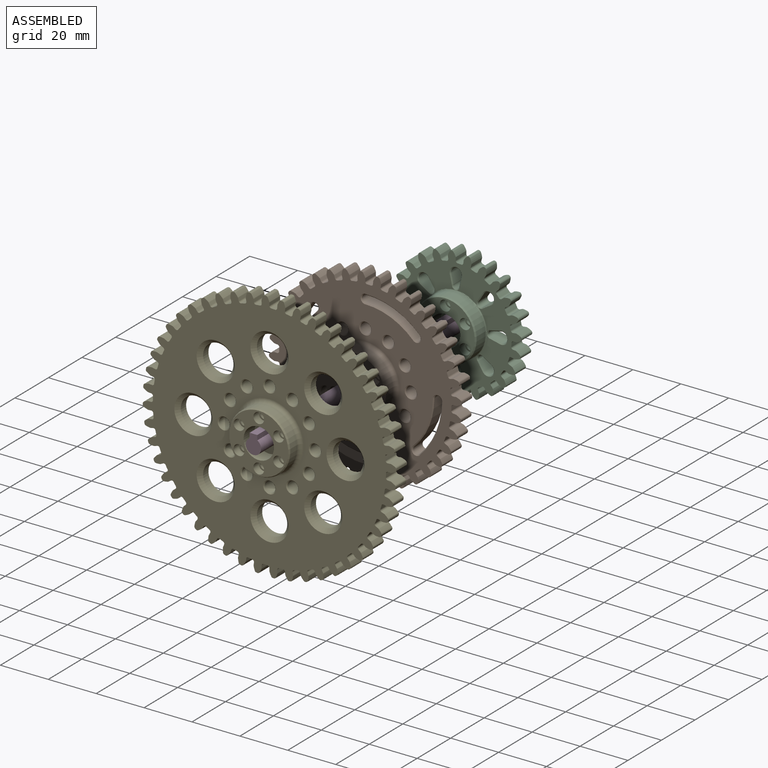
[diagram: assembled view]
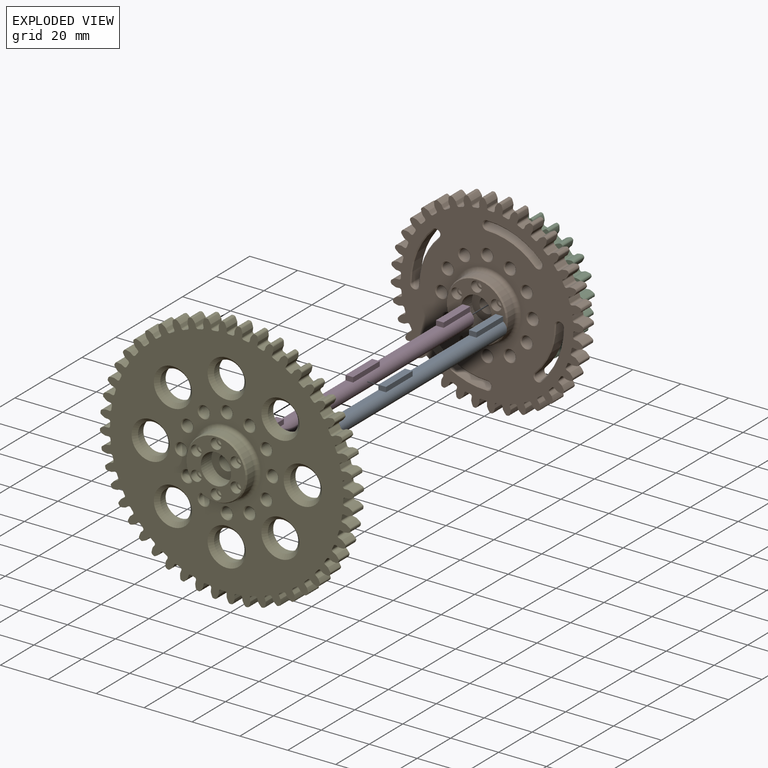
[diagram: exploded view]
GUIDED TOUR — MATED ASSEMBLY (Onshape document 1268253e7a1c496035810c1b, AutoMate assembly 1268253e7a1c496035810c1b_7d6ff047c3fdb3289a1ce572_73d7c6932561083ebfee6cdb_default)

This assembly has 5 components, labeled P0..P4 below (a component is one placed occurrence of a part; the same part can appear more than once), held together by 3 mates. A mate is a constraint between two components; its type names the relative motion it leaves free:
  FASTENED — locks the two components together rigidly (no relative motion).
Axis/direction vectors are unit vectors and 'through' points are millimeter coordinates, both in the assembly's world frame.

MATES
  1. FASTENED "Fastened 3": P2 <-> P3, direction (0.000, 1.000, 0.000) through (-1.90, 63.50, 4.77) mm
  2. FASTENED "Fastened 2": P1 <-> P3, direction (0.000, 1.000, 0.000) through (-1.90, 9.53, 4.77) mm
  3. FASTENED "Fastened 1": P4 <-> P3, direction (0.000, 1.000, 0.000) through (-1.90, -47.62, 4.77) mm

ASSEMBLY ORDER
  1. P3 — the base component [order heuristic]
  2. P0 [order heuristic]
  3. P1 [order heuristic]
  4. P2 [order heuristic]
  5. P4 [order heuristic]
Order-tag legend:
  [order heuristic] — this assembly is geometrically interlocked (no collision-free removal order exists), so components are listed in mate-graph order; insertion feasibility is not verified.

Of the 5 components, 2 carry the full construction recipe — the FeatureScript program that regenerates the part's solid from scratch; the rest are supplied as boundary geometry only.
Each toured component is shown spotlighted twice — in the assembled view, then in the exploded view, where a leader line traces a displaced component back to its assembled socket (saturated green if recipe-attached, orange if geometry-only; every other component desaturated gray) — followed by its recipe or geometry summary and the mates that hold it.
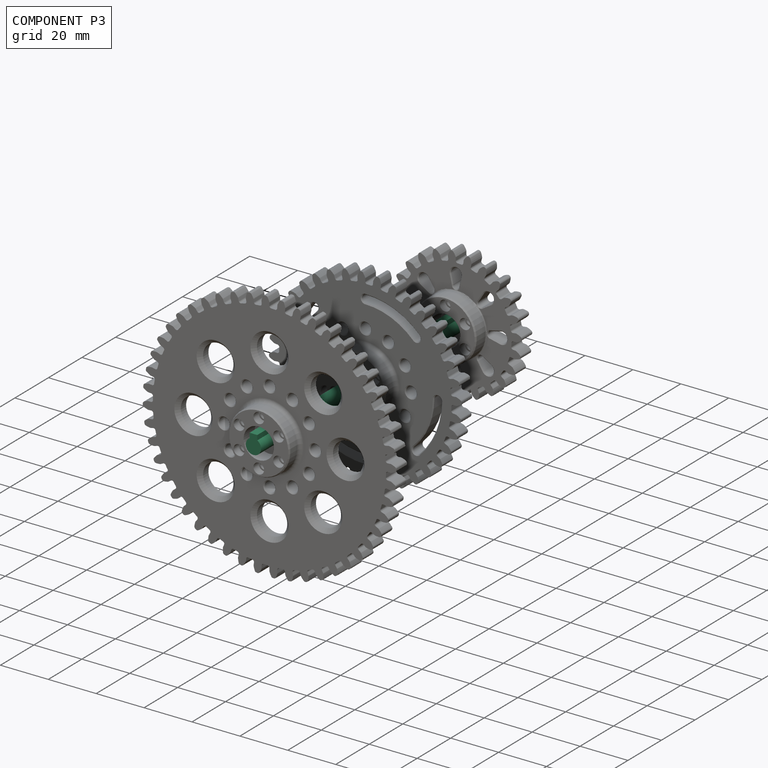
[diagram: component P3 — assembled]
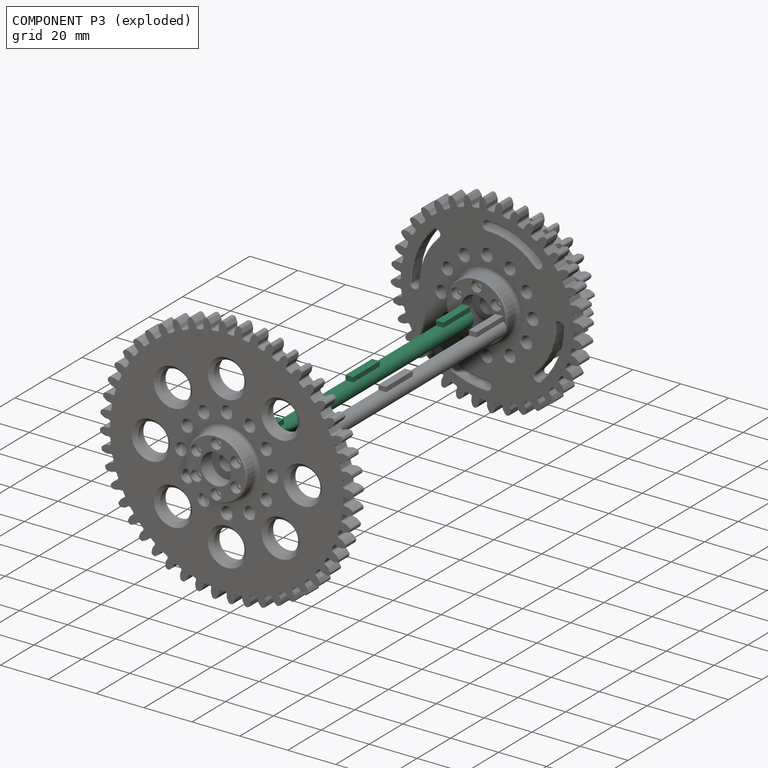
[diagram: component P3 — exploded]
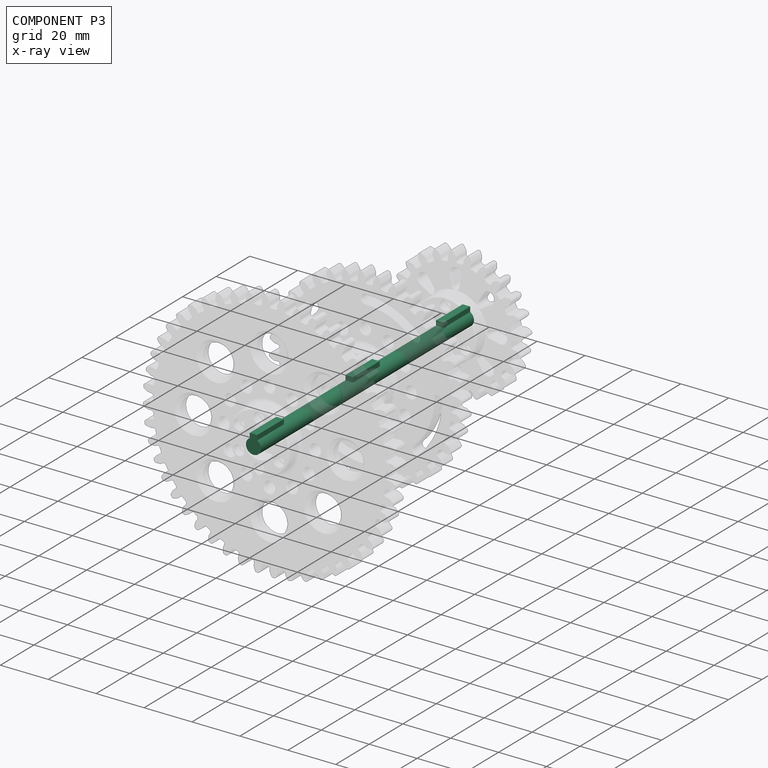
[diagram: component P3 — x-ray view]
COMPONENT P3 — same part as P0 (CADFS 00218747); its construction recipe is shown at P0.
Held by: FASTENED mate "Fastened 3" to P2; FASTENED mate "Fastened 2" to P1; FASTENED mate "Fastened 1" to P4.
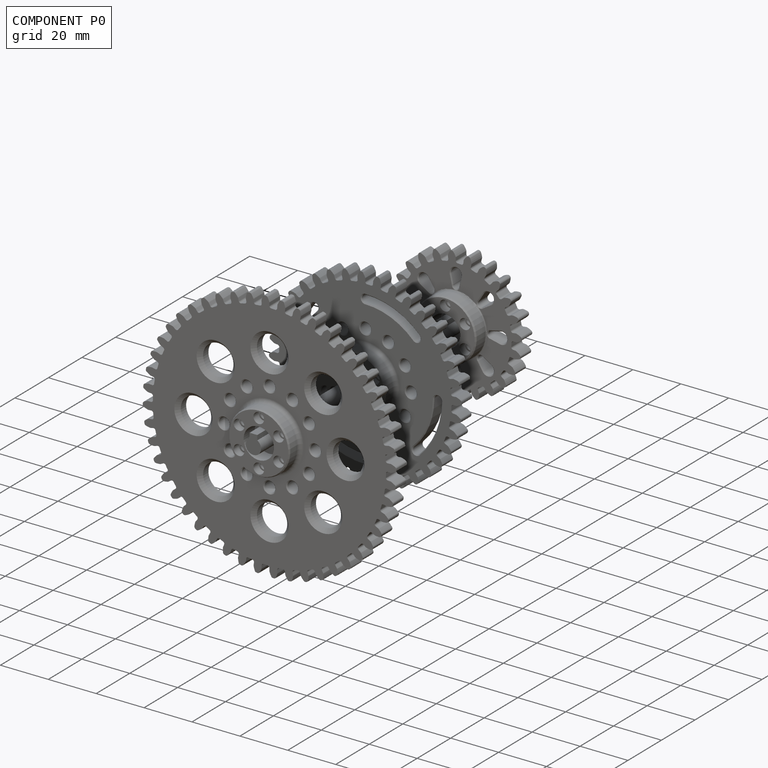
[diagram: component P0 — assembled]
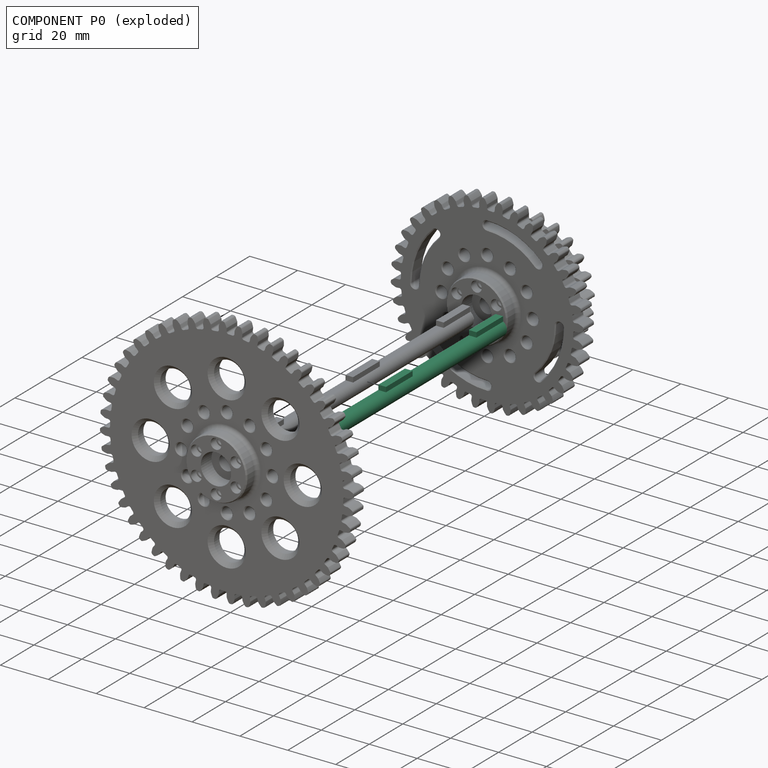
[diagram: component P0 — exploded]
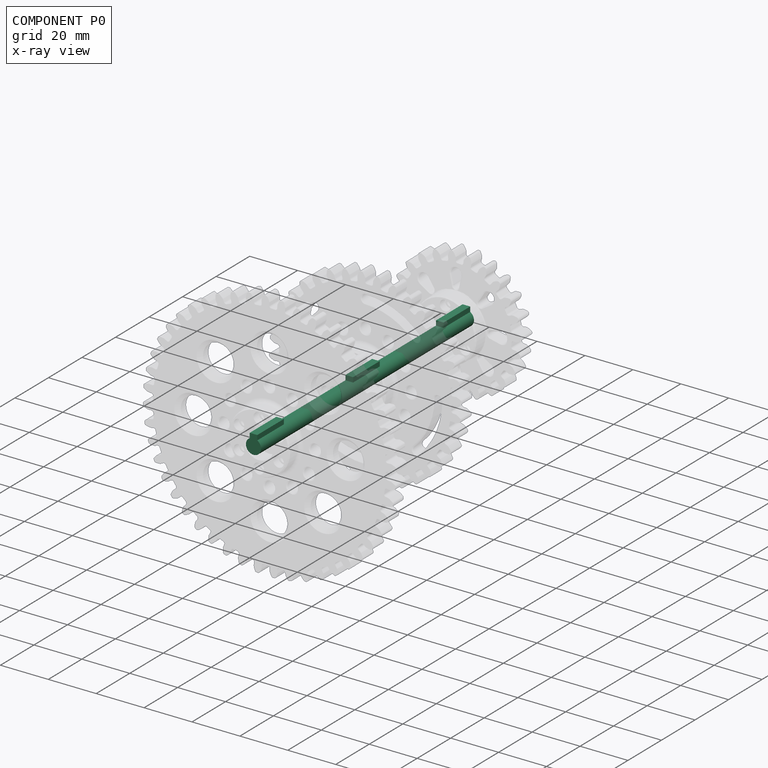
[diagram: component P0 — x-ray view]
COMPONENT P0 — recipe-attached (CADFS 00218747, mesh-verified: the recipe's output STEP matches this component's geometry to below the mesh-comparison resolution (tessellation chordal tolerance ~0.191 mm)).
Held by: no mates (free).
Construction recipe (FeatureScript — the CAD program that rebuilds this solid; sketch coordinates are in the units given by the * unit suffixes, e.g. mm):

FeatureScript 1511;
import(path : "onshape/std/geometry.fs", version : "1511.0");
import(path : "onshape/std/common.fs", version : "1511.0");
const mm = millimeter;
const VERTEX = EntityType.VERTEX;
const EDGE = EntityType.EDGE;
const FACE = EntityType.FACE;
const BODY = EntityType.BODY;
function v(x, y){return vector(x, y);}
function OD(order){return orderDisambiguation(order);}
function OSD(set){return originalSetDisambiguation(set);}
function TD(topology){return topologyDisambiguation(topology);}
function TDD(query){return trueDependencyDisambiguation(query);}
function sQuery(a, b, c) {return sketchEntityQuery(a, b, c);}

annotation { "Feature Type Name" : "Feature", "Feature Type Description" : "" }
export const myFeature = defineFeature(function(context is Context, id is Id, definition is map)
    precondition{}
    {
        {
            var Q0;
            Q0=qCreatedBy(makeId("Front.planeOp"),FACE);
            var sketch = newSketch(context, id + "F0", { "sketchPlane" : qUnion([Q0])});
            skArc(sketch, "E0", {"start": v(-1.59, 2.75) * mm, "mid": v(0, -3.18) * mm, "end": v(1.59, 2.75) * mm});
            skLineSegment(sketch, "E1", {"start": v(-1.59, 4.78) * mm, "end": v(1.59, 4.78) * mm});
            skLineSegment(sketch, "E2", {"start": v(1.59, 4.78) * mm, "end": v(1.59, 2.75) * mm});
            skLineSegment(sketch, "E3.MirrorCS", {"start": v(-1.59, 4.78) * mm, "end": v(-1.59, 2.75) * mm});
            skSolve(sketch);
        }
        {
            var Q0;
            Q0=makeQuery(id+"F0.imprint","IMPRINT",FACE,{"disambiguationData":[TD([[makeQuery(id+"F0.imprint","IMPRINT",EDGE,{"derivedFrom":sQuery(id+"F0.wireOp",EDGE,"E0")}),1.0]])]});
            extrude(context, id + "F1", {"entities" : qUnion([Q0]), "depth" : 127 * mm});
        }
        {
            var Q0;
            Q0=makeQuery(id+"F1.opExtrude","SWEPT_FACE",FACE,{"disambiguationData":[OSD([sQuery(id+"F0.wireOp",EDGE,"E2")])]});
            var sketch = newSketch(context, id + "F2", { "sketchPlane" : qUnion([Q0])});
            skLineSegment(sketch, "E4", {"start": v(-127, 4.78) * mm, "end": v(-111.12, 4.78) * mm});
            skLineSegment(sketch, "E5", {"start": v(-127, 2.75) * mm, "end": v(-127, 4.78) * mm});
            skLineSegment(sketch, "E6.0", {"start": v(-127, 2.74) * mm, "end": v(-111.12, 2.74) * mm});
            skLineSegment(sketch, "E7", {"start": v(-111.12, 2.74) * mm, "end": v(-111.12, 4.78) * mm});
            skLineSegment(sketch, "E8.0", {"start": v(-53.97, 2.74) * mm, "end": v(-69.85, 2.74) * mm});
            skLineSegment(sketch, "E9", {"start": v(-69.85, 2.74) * mm, "end": v(-69.85, 4.78) * mm});
            skLineSegment(sketch, "E10", {"start": v(-53.97, 2.74) * mm, "end": v(-53.97, 4.78) * mm});
            skLineSegment(sketch, "E11", {"start": v(-69.85, 4.78) * mm, "end": v(-53.97, 4.78) * mm});
            skPoint(sketch, "E12.endSnap0", {"position": v(-63.5, 4.78) * mm});
            skLineSegment(sketch, "E13", {"start": v(0, 4.78) * mm, "end": v(-15.88, 4.78) * mm});
            skLineSegment(sketch, "E14.0", {"start": v(0, 2.74) * mm, "end": v(-15.88, 2.74) * mm});
            skLineSegment(sketch, "E15", {"start": v(-15.88, 2.74) * mm, "end": v(-15.88, 4.78) * mm});
            skLineSegment(sketch, "E16", {"start": v(0, 2.75) * mm, "end": v(0, 4.78) * mm});
            skSolve(sketch);
        }
        {
            var Q0;
            {var subQ0=sQuery(id+"F2.wireOp",EDGE,"E7");var subQ1=sQuery(id+"F0.wireOp",EDGE,"E2");var subQ4=makeQuery(id+"F1.opExtrude","SWEPT_EDGE",EDGE,{"disambiguationData":[OSD([sQuery(id+"F0.wireOp",EDGE,"E0"),subQ1])]});var subQ5=makeQuery(id+"F2.imprint","INTERSECT",VERTEX,{"derivedFrom":[subQ4,subQ0]});Q0=makeQuery(id+"F2.imprint","IMPRINT",FACE,{"disambiguationData":[TD([[makeQuery(id+"F2.imprint","IMPRINT",EDGE,{"disambiguationData":[TD([[subQ5,-1.0]])],"derivedFrom":subQ0}),-1.0]])]});}
            var Q1;
            {var subQ0=sQuery(id+"F2.wireOp",EDGE,"E10");var subQ1=sQuery(id+"F0.wireOp",EDGE,"E2");var subQ4=makeQuery(id+"F1.opExtrude","SWEPT_EDGE",EDGE,{"disambiguationData":[OSD([sQuery(id+"F0.wireOp",EDGE,"E0"),subQ1])]});var subQ5=makeQuery(id+"F2.imprint","INTERSECT",VERTEX,{"derivedFrom":[subQ4,subQ0]});Q1=makeQuery(id+"F2.imprint","IMPRINT",FACE,{"disambiguationData":[TD([[makeQuery(id+"F2.imprint","IMPRINT",EDGE,{"disambiguationData":[TD([[subQ5,-1.0]])],"derivedFrom":subQ0}),-1.0]])]});}
            extrude(context, id + "F3", {"entities" : qUnion([Q0, Q1]), "operationType" : NewBodyOperationType.REMOVE, "oppositeDirection" : true, "depth" : 3.17 * mm});
        }
    });
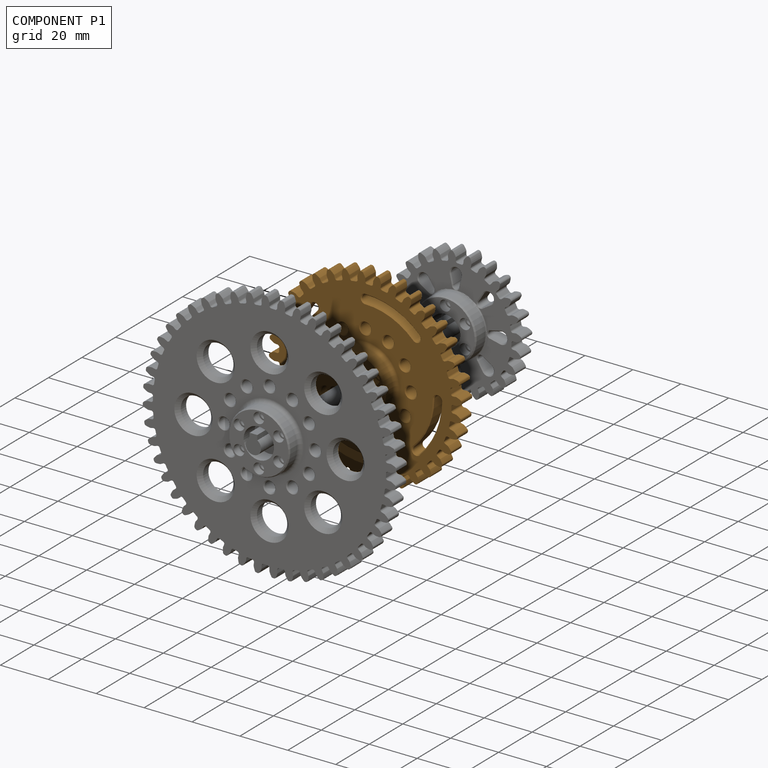
[diagram: component P1 — assembled]
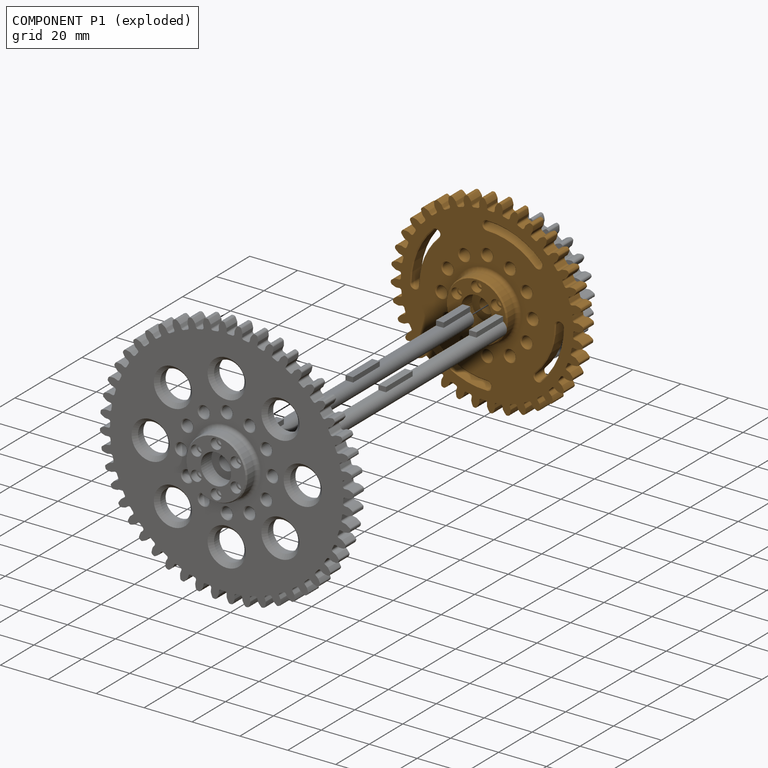
[diagram: component P1 — exploded]
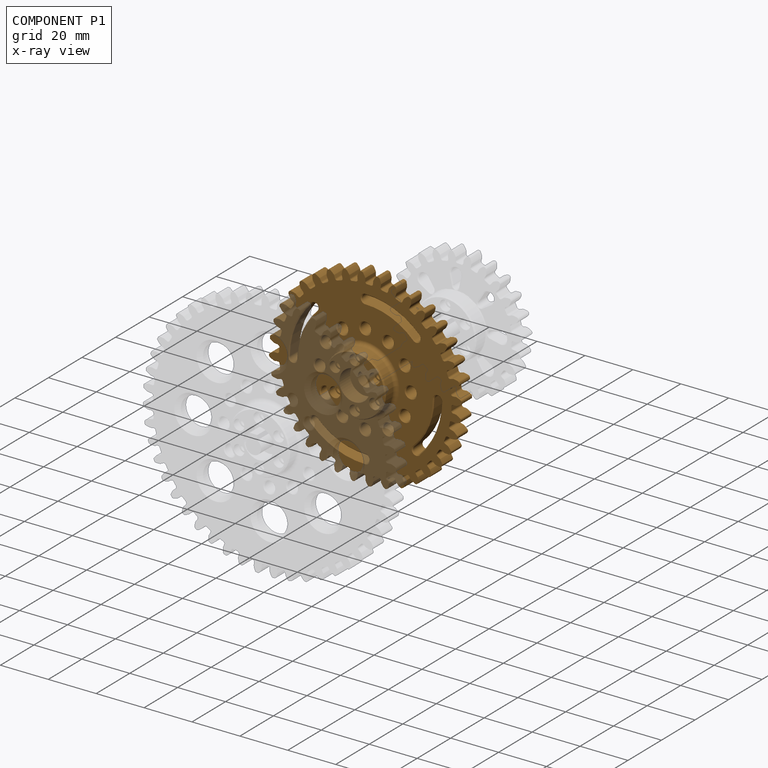
[diagram: component P1 — x-ray view]
COMPONENT P1 — geometry summary (no construction recipe available for this part):
  bounding box: 80.4 x 80.4 x 12.7 mm
  B-rep topology: 1 solid, 588 faces, 3340 edges
  volume: 26707 mm^3 (33% of its bounding box)
Held by: FASTENED mate "Fastened 2" to P3.
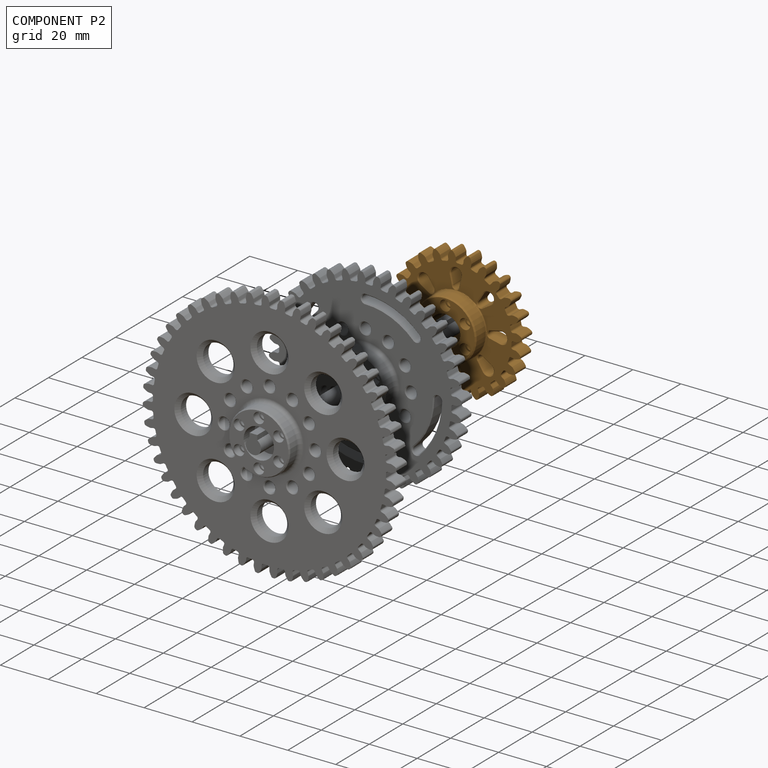
[diagram: component P2 — assembled]
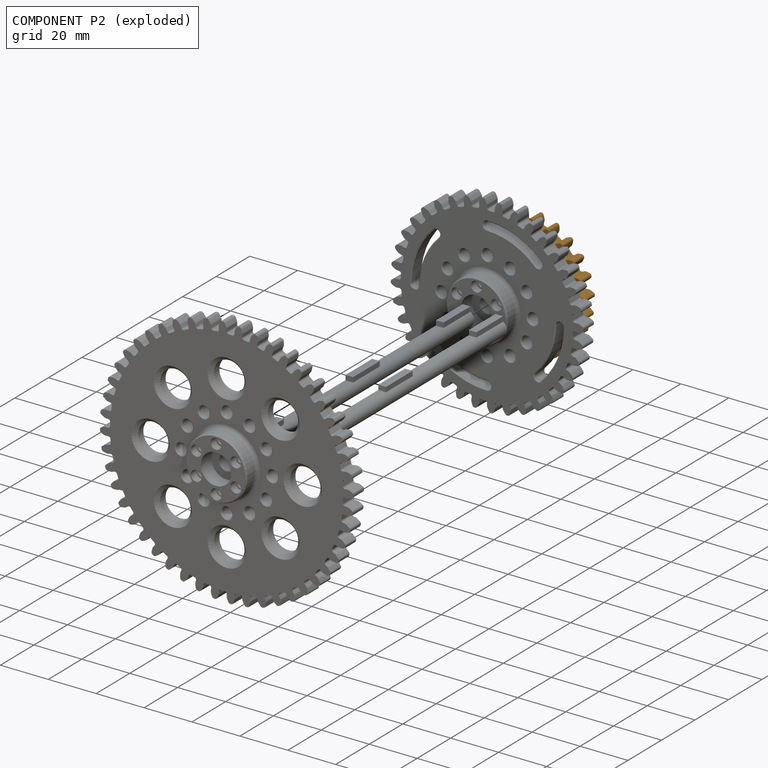
[diagram: component P2 — exploded]
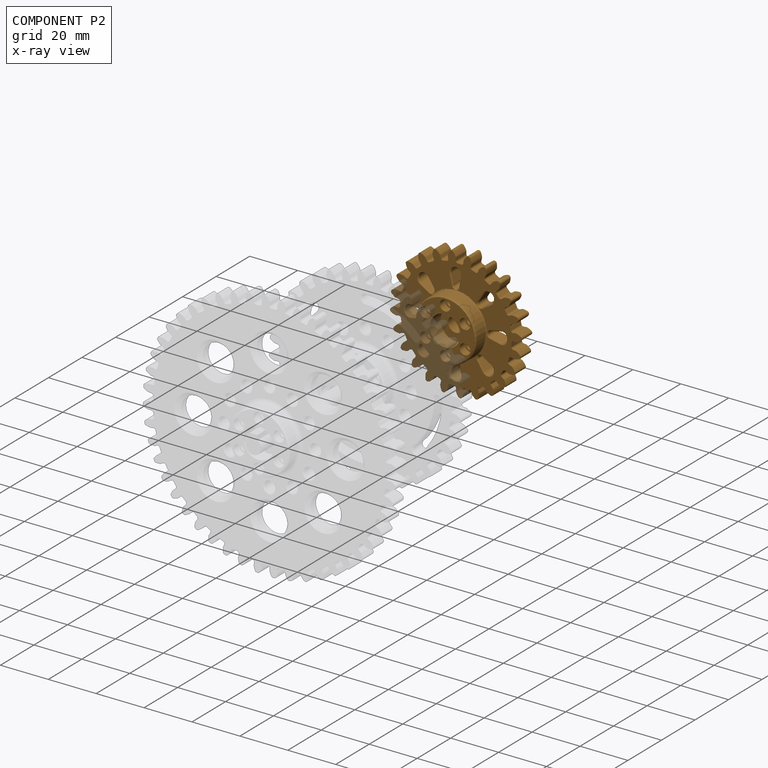
[diagram: component P2 — x-ray view]
COMPONENT P2 — geometry summary (no construction recipe available for this part):
  bounding box: 55.0 x 55.0 x 12.7 mm
  B-rep topology: 1 solid, 460 faces, 2572 edges
  volume: 12699 mm^3 (33% of its bounding box)
Held by: FASTENED mate "Fastened 3" to P3.
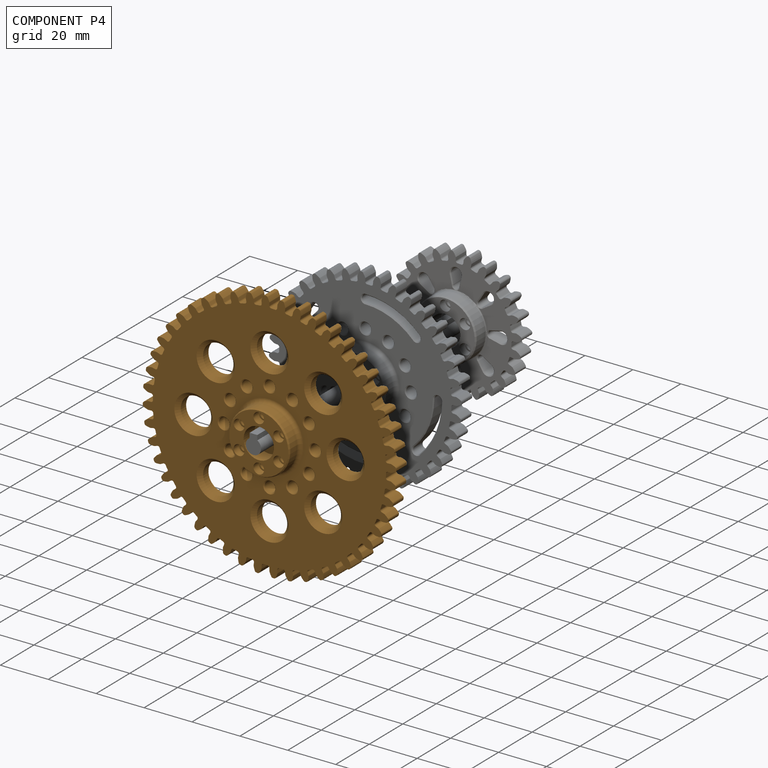
[diagram: component P4 — assembled]
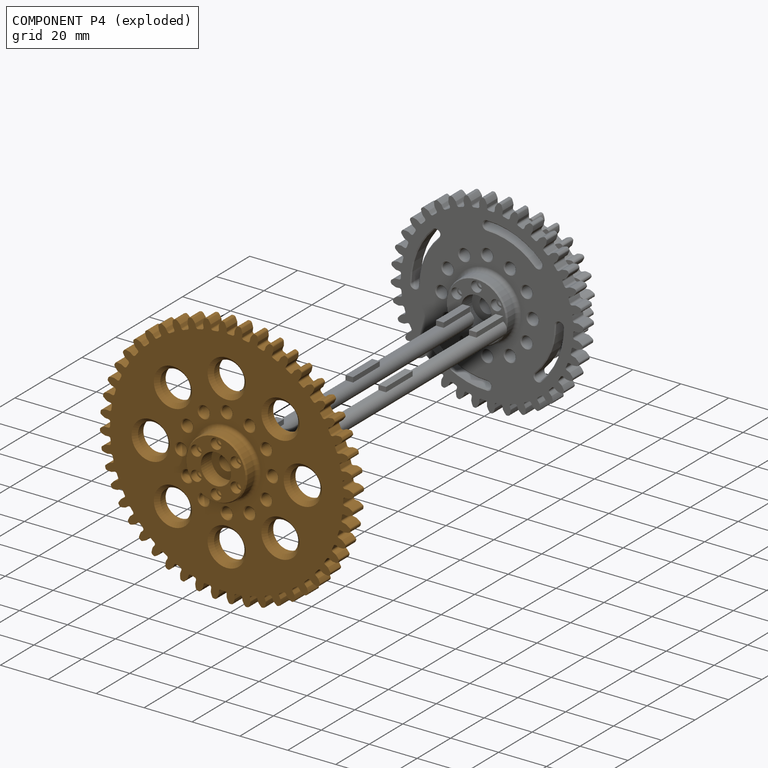
[diagram: component P4 — exploded]
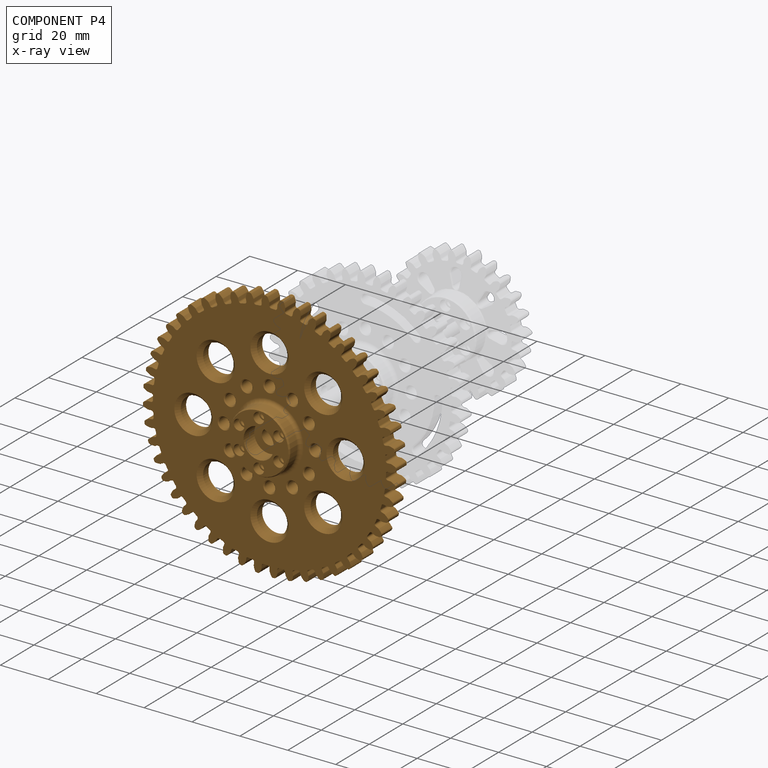
[diagram: component P4 — x-ray view]
COMPONENT P4 — geometry summary (no construction recipe available for this part):
  bounding box: 105.8 x 105.8 x 12.7 mm
  B-rep topology: 1 solid, 672 faces, 3876 edges
  volume: 43963 mm^3 (31% of its bounding box)
  symmetry: 2-fold rotationally symmetric about the y axis
Held by: FASTENED mate "Fastened 1" to P3.
PROVENANCE & LICENSES
Assembly (occurrences, transforms, mates, per-part STEP geometry): AutoMate dataset, Zenodo record 7776208, CC0.
Construction recipes: CADFS (HuggingFace VladPyatov/CADFS, CC-BY-4.0, layered over the ABC dataset), FeatureScript reconstruction programs keyed by ABC model id.
Join: ABC meta listings map ABC model id -> Onshape documentId; within a shared document, parts are matched by geometric signature (bounding-box dims + volume at 0.1% relative tolerance, exact B-rep face/solid counts).
Verification: 2 of this assembly's 5 components carry a recipe attachment, and every attachment is mesh-verified: the CADFS STEP and the AutoMate member STEP were compared as meshes in their shared local frame (symmetric sampled-point-to-mesh distance); worst across the 2 attachments: below the mesh-comparison resolution (tessellation chordal tolerance ~0.191 mm) on a 127 mm part.
Renders: orthographic iso camera (az 35 / el 25); the floor grid conveys scale (grid pitch printed in each image; no ruler). In the exploded view each component is displaced by its stored offset vector: the offsets alone carry the explosion direction (mate normal/axis signs are not orientation cues and do not encode it), and separation distances are assigned per mate-chain, not proportionally to assembly-order depth.
